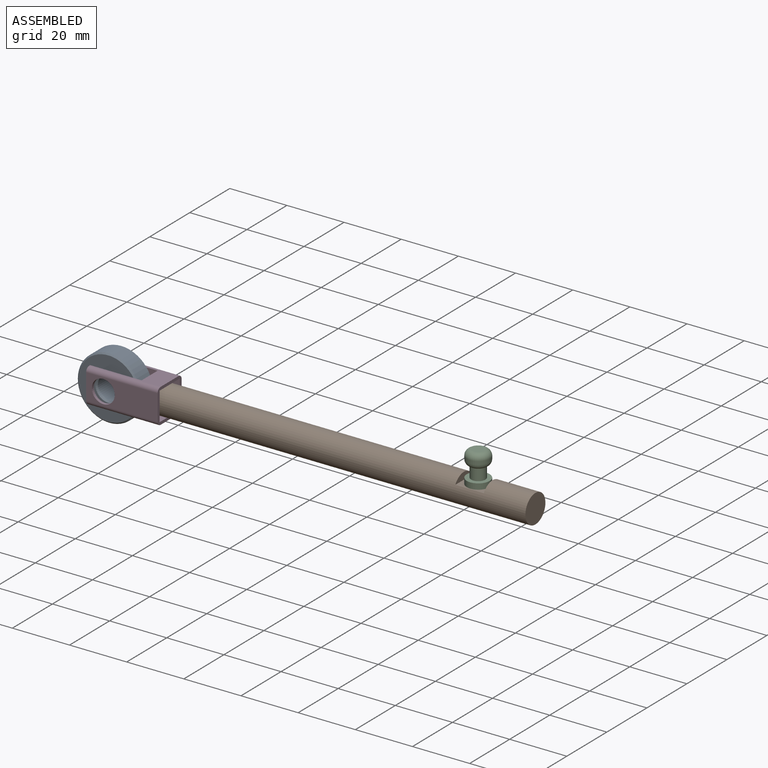
[diagram: assembled view]
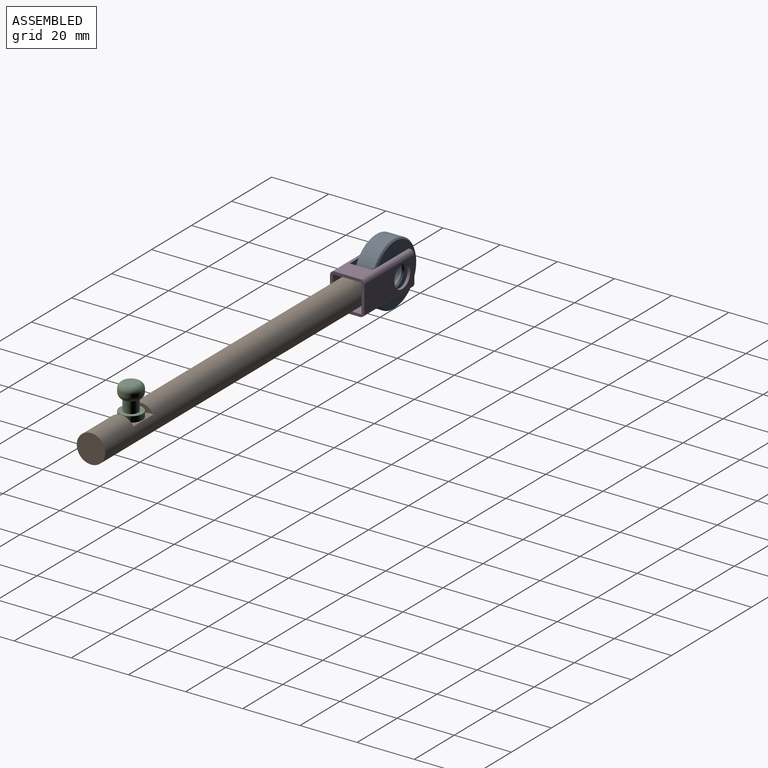
[diagram: assembled view, second angle]
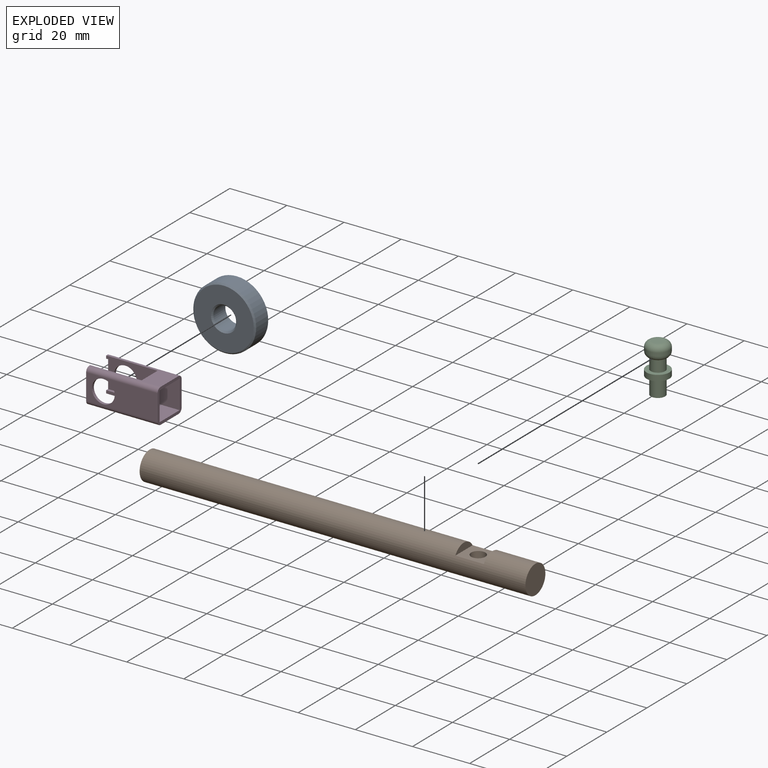
[diagram: exploded view]
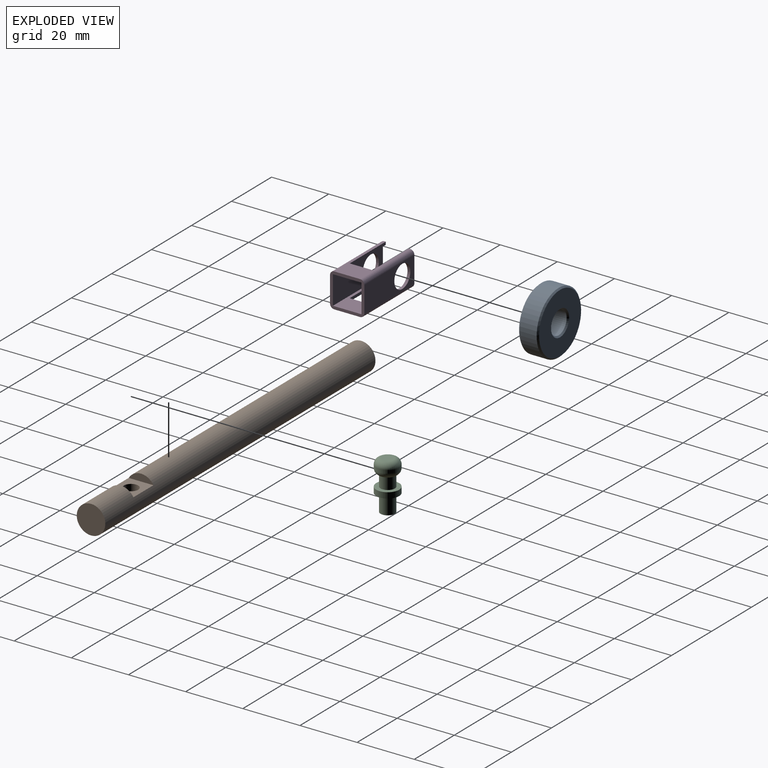
[diagram: exploded view, second angle]
ASSEMBLY  parts=4 mates=3
PART A: 8 faces, bbox 22x7x22 mm
  f0: cylinder r=4mm len=8mm, axis (0,1,0), area 150.8mm2, adj f4,f6
  f1: cylinder r=11mm len=22mm, axis (0,1,0), area 414.7mm2, adj f5,f7
  f2: plane 21x21mm, normal (0,-1,0), area 282.7mm2, adj f6,f7
  f3: plane 21x21mm, normal (0,1,0), area 282.7mm2, adj f4,f5
  f4: cone r=4.5mm half-angle=45deg, axis (0,1,0), area 18.9mm2, adj f0,f3
  f5: cone r=11mm half-angle=45deg, axis (0,-1,0), area 47.8mm2, adj f1,f3
  f6: cone r=4mm half-angle=45deg, axis (0,-1,0), area 18.9mm2, adj f0,f2
  f7: cone r=10.5mm half-angle=45deg, axis (0,1,0), area 47.8mm2, adj f1,f2
PART B: 7 faces, bbox 135x10x10 mm
  f0: cylinder r=5mm len=135mm, axis (-1,0,0), area 4116.1mm2, adj f1,f2,f3,f4,f5,f6
  f1: plane 10x10mm, normal (1,0,0), area 78.5mm2, adj f0
  f2: plane 10x10mm, normal (-1,0,0), area 78.5mm2, adj f0
  f3: plane 8.66x2.5mm, normal (1,0,0), area 15.4mm2, adj f0,f5
  f4: plane 8.66x2.5mm, normal (-1,0,0), area 15.4mm2, adj f0,f5
  f5: plane 10x8.66mm, normal (0,0,1), area 67mm2, adj f0,f3,f4,f6
  f6: cylinder r=2.5mm len=7.5mm, axis (0,0,1), area 112.6mm2, adj f0,f5
PART C: 10 faces, bbox 8.7x8.7x17 mm
  f0: cylinder r=2.5mm len=6mm, axis (0,0,-1), area 94.2mm2, adj f1,f4
  f1: plane 5x5mm, normal (0,0,-1), area 19.6mm2, adj f0
  f2: cylinder r=4mm len=8mm, axis (0,0,-1), area 50.3mm2, adj f3,f4
  f3: plane 8x8mm, normal (0,0,1), area 30.6mm2, adj f2,f5
  f4: plane 8x8mm, normal (0,0,-1), area 30.6mm2, adj f0,f2
  f5: cylinder r=2.5mm len=5mm, axis (0,0,-1), area 62.8mm2, adj f3,f8
  f6: cylinder r=4mm len=8mm, axis (0,0,-1), area 26.7mm2, adj f8,f9
  f7: plane 4x4mm, normal (0,0,1), area 12.6mm2, adj f9
  f8: torus R=2mm, axis (0,0,-1), area 57.5mm2, adj f5,f6
  f9: torus R=2mm, axis (0,0,1), area 64.6mm2, adj f6,f7
PART D: 23 faces, bbox 25x12x12 mm
  f0: plane 25x9mm, normal (0,0,1), area 81mm2, adj f4,f6,f7,f13,f14,f15,f16,f17
  f1: plane 25x9mm, normal (0,0,-1), area 81mm2, adj f4,f9,f12,f13,f14,f18,f19,f20
  f2: plane 25x10mm, normal (0,0,1), area 106mm2, adj f4,f10,f11,f13,f14,f18,f19,f20
  f3: plane 25x10mm, normal (0,0,-1), area 106mm2, adj f4,f10,f11,f13,f14,f15,f16,f17
  f4: plane 12x2mm, normal (-1,0,0), area 13mm2, adj f0,f1,f2,f3,f7,f8,f9,f10
  f5: plane 25x9mm, normal (0,1,0), area 174.7mm2, adj f6,f12,f13,f14,f21
  f6: cylinder r=1.5mm len=25mm, axis (-1,0,0), area 58.9mm2, adj f0,f5,f13,f14
  f7: cylinder r=1.5mm len=25mm, axis (-1,0,0), area 58.9mm2, adj f0,f4,f8,f13
  f8: plane 25x9mm, normal (0,-1,0), area 174.7mm2, adj f4,f7,f9,f13,f22
  f9: cylinder r=1.5mm len=25mm, axis (-1,0,0), area 58.9mm2, adj f1,f4,f8,f13
  f10: plane 25x10mm, normal (0,1,0), area 199.7mm2, adj f2,f3,f4,f13,f22
  f11: plane 25x10mm, normal (0,-1,0), area 199.7mm2, adj f2,f3,f13,f14,f21
  f12: cylinder r=1.5mm len=25mm, axis (-1,0,0), area 58.9mm2, adj f1,f5,f13,f14
  f13: plane 12x12mm, normal (1,0,0), area 42.1mm2, adj f0,f1,f2,f3,f5,f6,f7,f8
  f14: plane 12x2mm, normal (-1,0,0), area 13mm2, adj f0,f1,f2,f3,f5,f6,f11,f12
  f15: plane 8x1mm, normal (-1,0,0), area 8mm2, adj f0,f3,f16,f17
  f16: plane 18x1mm, normal (0,1,0), area 18mm2, adj f0,f3,f4,f15
  f17: plane 18x1mm, normal (0,-1,0), area 18mm2, adj f0,f3,f14,f15
  f18: plane 8x1mm, normal (-1,0,0), area 8mm2, adj f1,f2,f19,f20
  f19: plane 18x1mm, normal (0,-1,0), area 18mm2, adj f1,f2,f14,f18
  f20: plane 18x1mm, normal (0,1,0), area 18mm2, adj f1,f2,f4,f18
  f21: cylinder r=4mm len=8mm, axis (0,-1,0), area 25.1mm2, adj f5,f11
  f22: cylinder r=4mm len=8mm, axis (0,-1,0), area 25.1mm2, adj f8,f10
PLACE A rot(axis=(0,1,0),0.2deg) t=(6,3.5,0)mm
PLACE B t=(18,0,0)mm
PLACE C t=(133,0,-3.5)mm
PLACE D at identity fixed
MATE revolute A.f0 <-> D.f21  axis (0,1,0) through (6,-3,0)mm
MATE fastened D.f13 <-> B.f0  axis (1,0,0) through (25,0,0)mm
MATE fastened C.f2 <-> B.f6  axis (0,0,-1) through (133,0,2.5)mm
